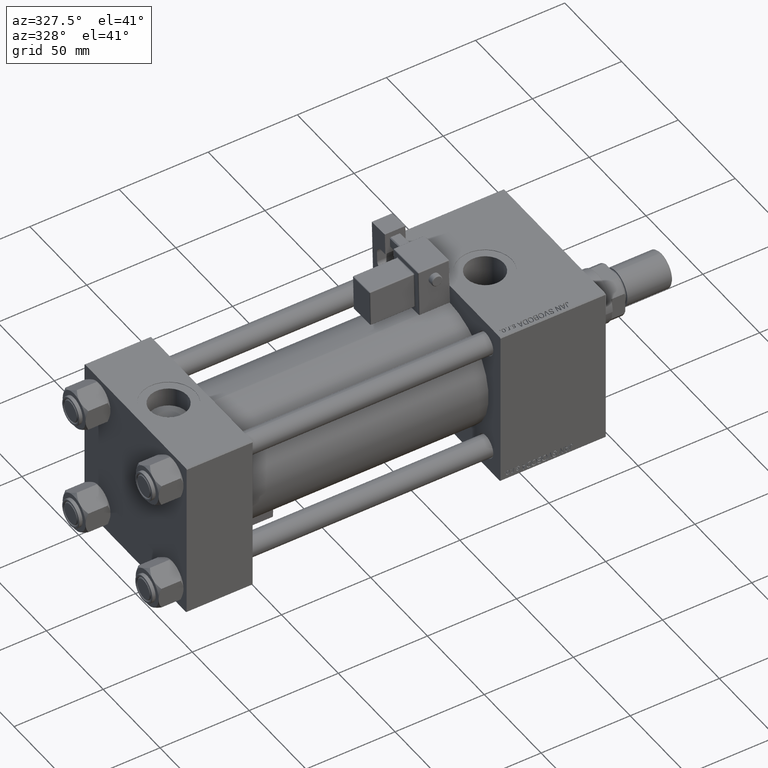
[diagram: clean part render]
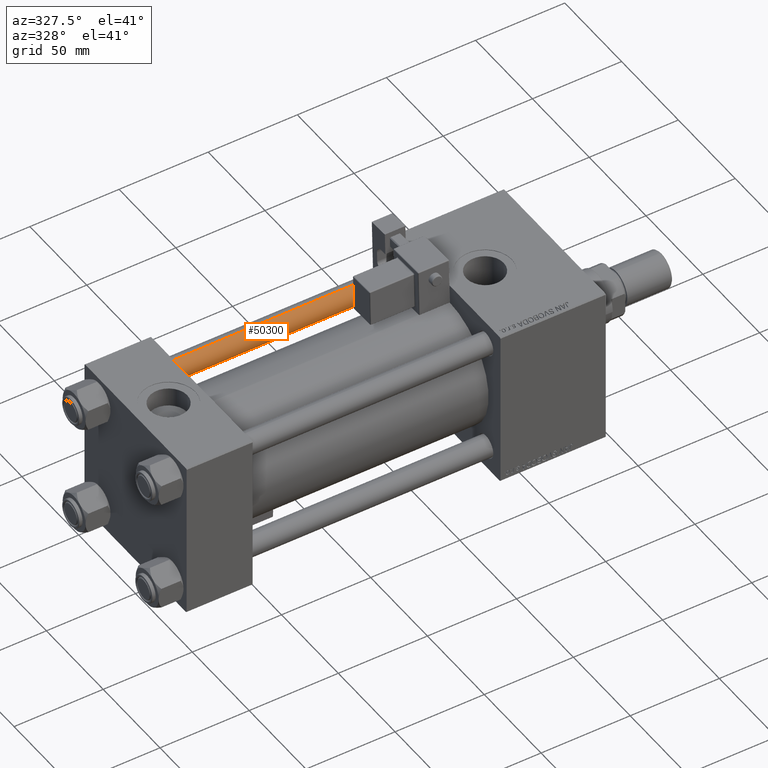
[diagram: same view with one face highlighted and labeled with its STEP entity id]
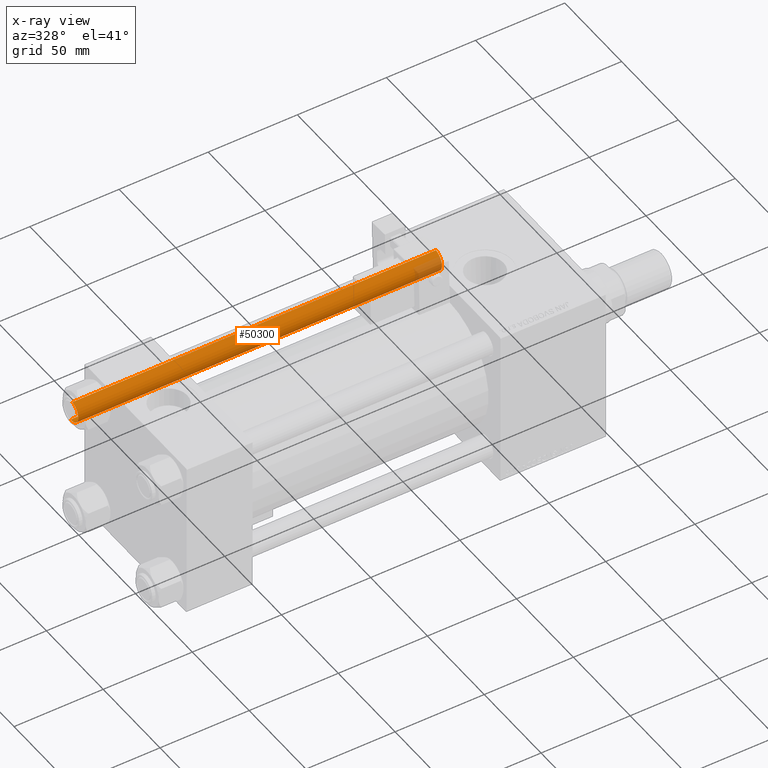
[diagram: x-ray of the same camera — body ghosted, the highlighted face saturated]
A machine part, auxiliary view. The second image highlights one B-rep face of the part: STEP entity #50300.
The next image is the same camera in x-ray: the body ghosted, the highlighted face saturated — about 5% of this face is hidden behind the body in this view.
In plain terms, the highlighted cylindrical surface (edge-blend (fillet) strip) has radius 6 mm, axis along (-1, 0, 0).
Its self-contained STEP definition (entity closure, byte-faithful):
#4569 = CARTESIAN_POINT ( 'NONE',  ( -6.000000000000000888, 0.000000000000000000, 0.5000000000001114664 ) ) ;
#10974 = DIRECTION ( 'NONE',  ( -1.000000000000000000, 0.000000000000000000, 0.000000000000000000 ) ) ;
#18235 = ORIENTED_EDGE ( 'NONE', *, *, #41205, .T. ) ;
#20561 = EDGE_CURVE ( 'NONE', #37494, #43662, #53999, .T. ) ;
#21665 = CARTESIAN_POINT ( 'NONE',  ( -6.000000000000000888, 0.000000000000000000, 204.5000000000000568 ) ) ;
#22178 = CIRCLE ( 'NONE', #40727, 6.000000000000000888 ) ;
#22361 = DIRECTION ( 'NONE',  ( 1.000000000000000000, 0.000000000000000000, 0.000000000000000000 ) ) ;
#23944 = FACE_OUTER_BOUND ( 'NONE', #30259, .T. ) ;
#24053 = EDGE_CURVE ( 'NONE', #37494, #44231, #26622, .T. ) ;
#26622 = LINE ( 'NONE', #31592, #44474 ) ;
#29945 = AXIS2_PLACEMENT_3D ( 'NONE', #44669, #40533, #10974 ) ;
#30259 = EDGE_LOOP ( 'NONE', ( #47024, #53128, #18235, #43640 ) ) ;
#30906 = VECTOR ( 'NONE', #32753, 1000.000000000000000 ) ;
#31592 = CARTESIAN_POINT ( 'NONE',  ( 6.000000000000000888, 7.347880794884119736E-16, 205.0000000000000000 ) ) ;
#32753 = DIRECTION ( 'NONE',  ( -0.000000000000000000, -0.000000000000000000, -1.000000000000000000 ) ) ;
#34696 = CARTESIAN_POINT ( 'NONE',  ( 6.000000000000000888, 7.347880794884119736E-16, 204.5000000000000568 ) ) ;
#35501 = AXIS2_PLACEMENT_3D ( 'NONE', #42062, #38208, #50618 ) ;
#37494 = VERTEX_POINT ( 'NONE', #34696 ) ;
#38208 = DIRECTION ( 'NONE',  ( 0.000000000000000000, 0.000000000000000000, -1.000000000000000000 ) ) ;
#40533 = DIRECTION ( 'NONE',  ( -0.000000000000000000, -0.000000000000000000, -1.000000000000000000 ) ) ;
#40727 = AXIS2_PLACEMENT_3D ( 'NONE', #51637, #48589, #22361 ) ;
#41205 = EDGE_CURVE ( 'NONE', #43662, #43588, #42104, .T. ) ;
#42062 = CARTESIAN_POINT ( 'NONE',  ( 0.000000000000000000, 0.000000000000000000, 204.5000000000000568 ) ) ;
#42104 = LINE ( 'NONE', #54245, #30906 ) ;
#43588 = VERTEX_POINT ( 'NONE', #4569 ) ;
#43640 = ORIENTED_EDGE ( 'NONE', *, *, #47432, .T. ) ;
#43662 = VERTEX_POINT ( 'NONE', #21665 ) ;
#44231 = VERTEX_POINT ( 'NONE', #51894 ) ;
#44474 = VECTOR ( 'NONE', #48141, 1000.000000000000000 ) ;
#44669 = CARTESIAN_POINT ( 'NONE',  ( 0.000000000000000000, 0.000000000000000000, 205.0000000000000000 ) ) ;
#47024 = ORIENTED_EDGE ( 'NONE', *, *, #24053, .F. ) ;
#47432 = EDGE_CURVE ( 'NONE', #43588, #44231, #22178, .T. ) ;
#48141 = DIRECTION ( 'NONE',  ( -0.000000000000000000, -0.000000000000000000, -1.000000000000000000 ) ) ;
#48589 = DIRECTION ( 'NONE',  ( -0.000000000000000000, -0.000000000000000000, 1.000000000000000000 ) ) ;
#49350 = CYLINDRICAL_SURFACE ( 'NONE', #29945, 6.000000000000000888 ) ;
#50300 = ADVANCED_FACE ( 'NONE', ( #23944 ), #49350, .T. ) ;
#50618 = DIRECTION ( 'NONE',  ( 1.000000000000000000, 0.000000000000000000, 0.000000000000000000 ) ) ;
#51637 = CARTESIAN_POINT ( 'NONE',  ( 0.000000000000000000, 0.000000000000000000, 0.5000000000001114664 ) ) ;
#51894 = CARTESIAN_POINT ( 'NONE',  ( 6.000000000000000888, 7.347880794884119736E-16, 0.5000000000001114664 ) ) ;
#53128 = ORIENTED_EDGE ( 'NONE', *, *, #20561, .T. ) ;
#53999 = CIRCLE ( 'NONE', #35501, 6.000000000000000888 ) ;
#54245 = CARTESIAN_POINT ( 'NONE',  ( -6.000000000000000888, 0.000000000000000000, 205.0000000000000000 ) ) ;